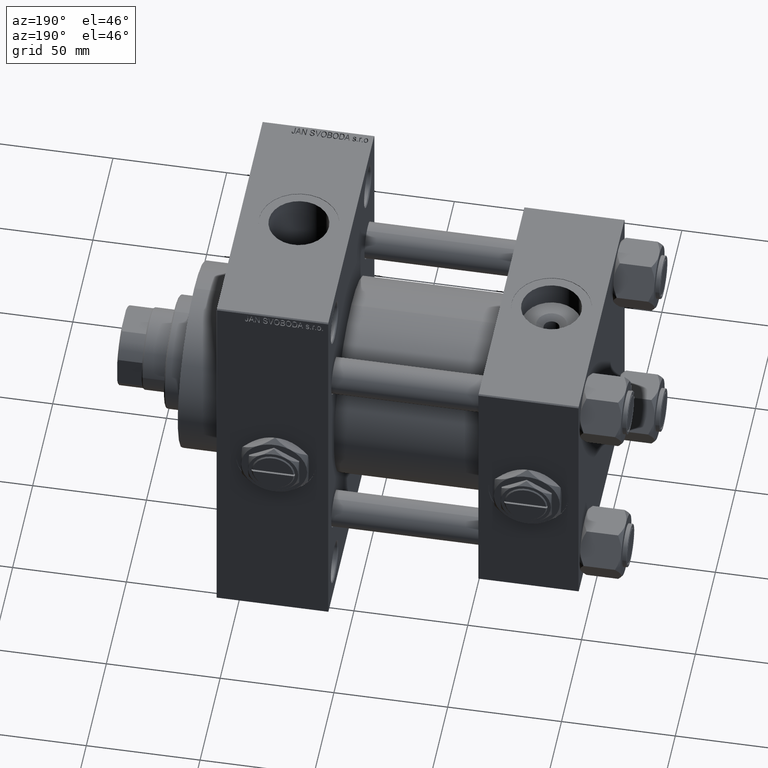
[diagram: clean part render]
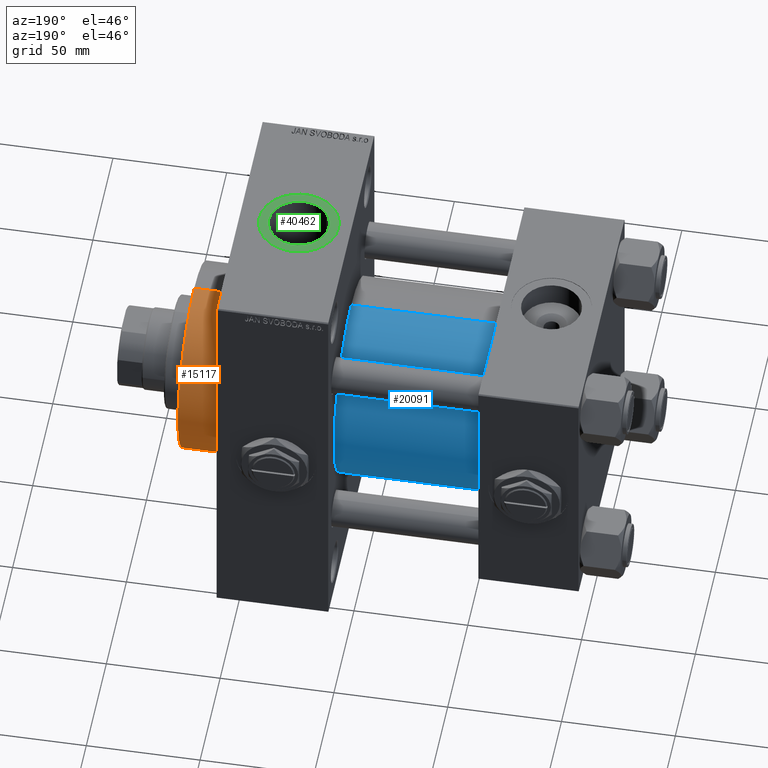
[diagram: same view with three faces highlighted in distinct colors, each labeled with its STEP entity id]
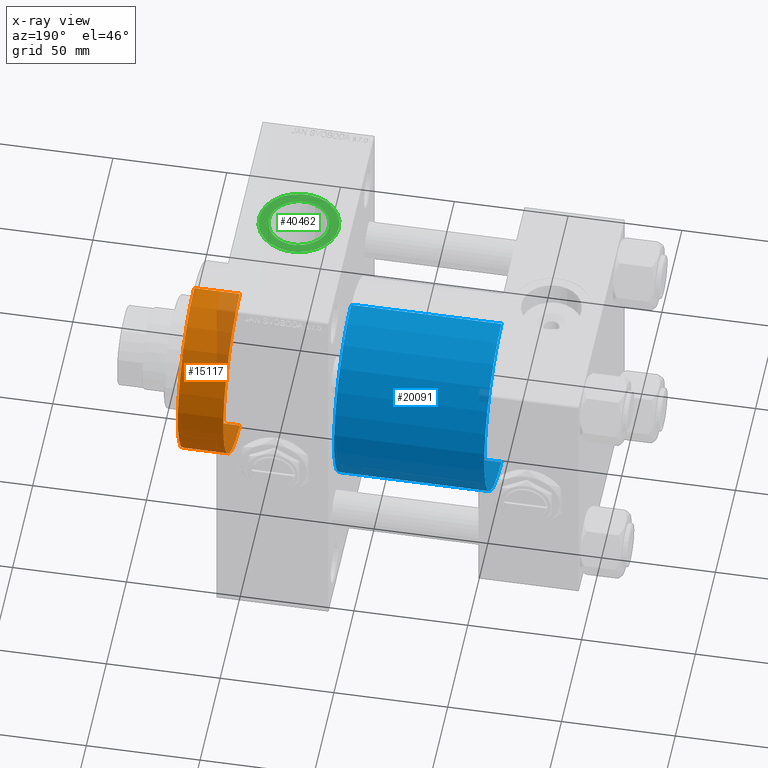
[diagram: x-ray of the same camera — body ghosted, the three highlighted faces saturated]
A machine part, auxiliary view with three faces highlighted in distinct colors.
The next image is the same camera in x-ray (body ghosted, the three faces saturated) — at least one of them is partly hidden behind the body in this view.
Their STEP definitions:

[orange] entity #15117 — the highlighted cylindrical surface (partial cylindrical patch) has radius 41 mm, axis along (-1, -0, -0).
#35 = CARTESIAN_POINT ( 'NONE',  ( 179.0000000000000000, 0.000000000000000000, 41.00000000000000000 ) ) ;
#1355 = DIRECTION ( 'NONE',  ( -1.000000000000000000, -0.000000000000000000, -0.000000000000000000 ) ) ;
#3422 = DIRECTION ( 'NONE',  ( -1.000000000000000000, -0.000000000000000000, -0.000000000000000000 ) ) ;
#4860 = DIRECTION ( 'NONE',  ( 1.000000000000000000, 0.000000000000000000, 0.000000000000000000 ) ) ;
#5540 = CYLINDRICAL_SURFACE ( 'NONE', #43099, 41.00000000000000000 ) ;
#6278 = VERTEX_POINT ( 'NONE', #36998 ) ;
#6440 = EDGE_CURVE ( 'NONE', #48940, #30090, #28548, .T. ) ;
#8254 = CIRCLE ( 'NONE', #49274, 41.00000000000000000 ) ;
#8316 = EDGE_CURVE ( 'NONE', #13550, #48940, #8254, .T. ) ;
#8837 = ORIENTED_EDGE ( 'NONE', *, *, #8316, .F. ) ;
#9802 = FACE_OUTER_BOUND ( 'NONE', #15694, .T. ) ;
#11208 = ORIENTED_EDGE ( 'NONE', *, *, #12986, .T. ) ;
#11659 = AXIS2_PLACEMENT_3D ( 'NONE', #39387, #4860, #47166 ) ;
#12085 = ORIENTED_EDGE ( 'NONE', *, *, #26841, .T. ) ;
#12986 = EDGE_CURVE ( 'NONE', #6278, #30090, #45455, .T. ) ;
#13550 = VERTEX_POINT ( 'NONE', #47481 ) ;
#15117 = ADVANCED_FACE ( 'NONE', ( #9802 ), #5540, .T. ) ;
#15694 = EDGE_LOOP ( 'NONE', ( #8837, #12085, #11208, #24688 ) ) ;
#18022 = CARTESIAN_POINT ( 'NONE',  ( 179.0000000000000000, 0.000000000000000000, 0.000000000000000000 ) ) ;
#18655 = VECTOR ( 'NONE', #1355, 1000.000000000000000 ) ;
#18775 = CARTESIAN_POINT ( 'NONE',  ( 179.0000000000000000, 5.021051876504148963E-15, -41.00000000000000000 ) ) ;
#24688 = ORIENTED_EDGE ( 'NONE', *, *, #6440, .F. ) ;
#25186 = DIRECTION ( 'NONE',  ( 0.000000000000000000, 0.000000000000000000, 1.000000000000000000 ) ) ;
#25336 = DIRECTION ( 'NONE',  ( 0.000000000000000000, 0.000000000000000000, -1.000000000000000000 ) ) ;
#26841 = EDGE_CURVE ( 'NONE', #13550, #6278, #38186, .T. ) ;
#28548 = LINE ( 'NONE', #35610, #18655 ) ;
#30090 = VERTEX_POINT ( 'NONE', #43027 ) ;
#32505 = CARTESIAN_POINT ( 'NONE',  ( 179.0000000000000000, 0.000000000000000000, 0.000000000000000000 ) ) ;
#35610 = CARTESIAN_POINT ( 'NONE',  ( 179.0000000000000000, 0.000000000000000000, 41.00000000000000000 ) ) ;
#36922 = DIRECTION ( 'NONE',  ( 1.000000000000000000, 0.000000000000000000, 0.000000000000000000 ) ) ;
#36998 = CARTESIAN_POINT ( 'NONE',  ( 159.0000000000000000, 5.021051876504148963E-15, -41.00000000000000000 ) ) ;
#38186 = LINE ( 'NONE', #18775, #41807 ) ;
#39387 = CARTESIAN_POINT ( 'NONE',  ( 159.0000000000000000, 0.000000000000000000, 0.000000000000000000 ) ) ;
#41807 = VECTOR ( 'NONE', #3422, 1000.000000000000000 ) ;
#43027 = CARTESIAN_POINT ( 'NONE',  ( 159.0000000000000000, 0.000000000000000000, 41.00000000000000000 ) ) ;
#43099 = AXIS2_PLACEMENT_3D ( 'NONE', #32505, #47836, #25186 ) ;
#45455 = CIRCLE ( 'NONE', #11659, 41.00000000000000000 ) ;
#47166 = DIRECTION ( 'NONE',  ( 0.000000000000000000, 0.000000000000000000, -1.000000000000000000 ) ) ;
#47481 = CARTESIAN_POINT ( 'NONE',  ( 179.0000000000000000, 5.021051876504148963E-15, -41.00000000000000000 ) ) ;
#47836 = DIRECTION ( 'NONE',  ( -1.000000000000000000, -0.000000000000000000, -0.000000000000000000 ) ) ;
#48940 = VERTEX_POINT ( 'NONE', #35 ) ;
#49274 = AXIS2_PLACEMENT_3D ( 'NONE', #18022, #36922, #25336 ) ;

[blue] entity #20091 — the highlighted cylindrical surface (partial cylindrical patch) has radius 43 mm, axis along (-1, -0, -0).
#2645 = ORIENTED_EDGE ( 'NONE', *, *, #47828, .T. ) ;
#2859 = CARTESIAN_POINT ( 'NONE',  ( 110.0000000000000000, 2.663896022368408223E-15, -43.00000000000000000 ) ) ;
#4958 = CARTESIAN_POINT ( 'NONE',  ( 44.00000000000000000, -2.602085213965210642E-15, 43.00000000000000000 ) ) ;
#5661 = ORIENTED_EDGE ( 'NONE', *, *, #34093, .T. ) ;
#5762 = DIRECTION ( 'NONE',  ( -1.000000000000000000, -0.000000000000000000, -0.000000000000000000 ) ) ;
#8139 = CIRCLE ( 'NONE', #21822, 43.00000000000000000 ) ;
#9510 = CIRCLE ( 'NONE', #32051, 43.00000000000000000 ) ;
#10027 = DIRECTION ( 'NONE',  ( 0.000000000000000000, 0.000000000000000000, 1.000000000000000000 ) ) ;
#10328 = CARTESIAN_POINT ( 'NONE',  ( 110.0000000000000000, -2.602085213965210642E-15, 43.00000000000000000 ) ) ;
#10573 = DIRECTION ( 'NONE',  ( -1.000000000000000000, -0.000000000000000000, -0.000000000000000000 ) ) ;
#11311 = CARTESIAN_POINT ( 'NONE',  ( 110.0000000000000000, -2.602085213965210642E-15, 43.00000000000000000 ) ) ;
#12872 = DIRECTION ( 'NONE',  ( 0.000000000000000000, 0.000000000000000000, 1.000000000000000000 ) ) ;
#13796 = CARTESIAN_POINT ( 'NONE',  ( 110.0000000000000000, -2.602085213965210642E-15, 0.000000000000000000 ) ) ;
#14790 = CARTESIAN_POINT ( 'NONE',  ( 110.0000000000000000, 2.663896022368408223E-15, -43.00000000000000000 ) ) ;
#17088 = DIRECTION ( 'NONE',  ( 1.000000000000000000, 0.000000000000000000, 0.000000000000000000 ) ) ;
#18174 = EDGE_CURVE ( 'NONE', #32203, #47190, #44842, .T. ) ;
#20091 = ADVANCED_FACE ( 'NONE', ( #36015 ), #36258, .T. ) ;
#20253 = VERTEX_POINT ( 'NONE', #14790 ) ;
#20454 = CARTESIAN_POINT ( 'NONE',  ( 44.00000000000000000, -2.602085213965210642E-15, 0.000000000000000000 ) ) ;
#21822 = AXIS2_PLACEMENT_3D ( 'NONE', #20454, #43372, #12872 ) ;
#22719 = EDGE_LOOP ( 'NONE', ( #38925, #5661, #2645, #26823 ) ) ;
#25404 = DIRECTION ( 'NONE',  ( 0.000000000000000000, 0.000000000000000000, -1.000000000000000000 ) ) ;
#26823 = ORIENTED_EDGE ( 'NONE', *, *, #18174, .F. ) ;
#32051 = AXIS2_PLACEMENT_3D ( 'NONE', #48802, #17088, #25404 ) ;
#32203 = VERTEX_POINT ( 'NONE', #11311 ) ;
#32605 = LINE ( 'NONE', #2859, #45531 ) ;
#34093 = EDGE_CURVE ( 'NONE', #20253, #46894, #32605, .T. ) ;
#36015 = FACE_OUTER_BOUND ( 'NONE', #22719, .T. ) ;
#36258 = CYLINDRICAL_SURFACE ( 'NONE', #37542, 43.00000000000000000 ) ;
#37542 = AXIS2_PLACEMENT_3D ( 'NONE', #13796, #5762, #10027 ) ;
#38263 = VECTOR ( 'NONE', #10573, 1000.000000000000000 ) ;
#38607 = CARTESIAN_POINT ( 'NONE',  ( 44.00000000000000000, 2.663896022368408223E-15, -43.00000000000000000 ) ) ;
#38925 = ORIENTED_EDGE ( 'NONE', *, *, #42455, .F. ) ;
#40896 = DIRECTION ( 'NONE',  ( -1.000000000000000000, -0.000000000000000000, -0.000000000000000000 ) ) ;
#42455 = EDGE_CURVE ( 'NONE', #20253, #32203, #9510, .T. ) ;
#43372 = DIRECTION ( 'NONE',  ( 1.000000000000000000, -0.000000000000000000, 0.000000000000000000 ) ) ;
#44842 = LINE ( 'NONE', #10328, #38263 ) ;
#45531 = VECTOR ( 'NONE', #40896, 1000.000000000000000 ) ;
#46894 = VERTEX_POINT ( 'NONE', #38607 ) ;
#47190 = VERTEX_POINT ( 'NONE', #4958 ) ;
#47828 = EDGE_CURVE ( 'NONE', #46894, #47190, #8139, .T. ) ;
#48802 = CARTESIAN_POINT ( 'NONE',  ( 110.0000000000000000, -2.602085213965210642E-15, 0.000000000000000000 ) ) ;

[green] entity #40462 — the highlighted planar face has unit normal (0, 0, 1).
#1382 = AXIS2_PLACEMENT_3D ( 'NONE', #18717, #11144, #7116 ) ;
#2018 = PLANE ( 'NONE',  #26355 ) ;
#5925 = EDGE_CURVE ( 'NONE', #30510, #19318, #48425, .T. ) ;
#6885 = EDGE_LOOP ( 'NONE', ( #25707, #35286 ) ) ;
#7089 = CARTESIAN_POINT ( 'NONE',  ( 146.2200000000000273, -9.241894346338509984E-15, 89.79999999999998295 ) ) ;
#7116 = DIRECTION ( 'NONE',  ( 1.000000000000000000, 0.000000000000000000, 0.000000000000000000 ) ) ;
#7420 = EDGE_CURVE ( 'NONE', #19318, #30510, #41240, .T. ) ;
#10235 = CIRCLE ( 'NONE', #28745, 17.50000000000001421 ) ;
#11144 = DIRECTION ( 'NONE',  ( 0.000000000000000000, 0.000000000000000000, 1.000000000000000000 ) ) ;
#13086 = CARTESIAN_POINT ( 'NONE',  ( 133.0000000000000000, -1.086087741481131350E-14, 89.79999999999998295 ) ) ;
#13902 = DIRECTION ( 'NONE',  ( 1.000000000000000000, 0.000000000000000000, 0.000000000000000000 ) ) ;
#14616 = AXIS2_PLACEMENT_3D ( 'NONE', #27275, #24239, #27761 ) ;
#14990 = CARTESIAN_POINT ( 'NONE',  ( 133.0000000000000000, -1.086087741481131350E-14, 89.79999999999998295 ) ) ;
#16516 = CARTESIAN_POINT ( 'NONE',  ( 150.5000000000000284, -1.086087741481131350E-14, 89.79999999999998295 ) ) ;
#16634 = CIRCLE ( 'NONE', #1382, 17.50000000000001421 ) ;
#17097 = CARTESIAN_POINT ( 'NONE',  ( 115.4999999999999858, -8.717745516303440521E-15, 89.79999999999998295 ) ) ;
#18717 = CARTESIAN_POINT ( 'NONE',  ( 133.0000000000000000, -1.086087741481131350E-14, 89.79999999999998295 ) ) ;
#19318 = VERTEX_POINT ( 'NONE', #32299 ) ;
#19534 = AXIS2_PLACEMENT_3D ( 'NONE', #26257, #48915, #13902 ) ;
#20180 = VERTEX_POINT ( 'NONE', #17097 ) ;
#20663 = FACE_OUTER_BOUND ( 'NONE', #6885, .T. ) ;
#21152 = DIRECTION ( 'NONE',  ( 1.000000000000000000, 0.000000000000000000, -0.000000000000000000 ) ) ;
#21388 = EDGE_CURVE ( 'NONE', #20180, #23095, #16634, .T. ) ;
#23095 = VERTEX_POINT ( 'NONE', #16516 ) ;
#24239 = DIRECTION ( 'NONE',  ( -0.000000000000000000, -0.000000000000000000, -1.000000000000000000 ) ) ;
#25707 = ORIENTED_EDGE ( 'NONE', *, *, #36327, .T. ) ;
#26257 = CARTESIAN_POINT ( 'NONE',  ( 133.0000000000000000, -1.086087741481131350E-14, 89.79999999999998295 ) ) ;
#26355 = AXIS2_PLACEMENT_3D ( 'NONE', #13086, #44559, #21152 ) ;
#27275 = CARTESIAN_POINT ( 'NONE',  ( 133.0000000000000000, -1.086087741481131350E-14, 89.79999999999998295 ) ) ;
#27761 = DIRECTION ( 'NONE',  ( 1.000000000000000000, 0.000000000000000000, 0.000000000000000000 ) ) ;
#28483 = FACE_BOUND ( 'NONE', #43968, .T. ) ;
#28745 = AXIS2_PLACEMENT_3D ( 'NONE', #14990, #30379, #45718 ) ;
#30379 = DIRECTION ( 'NONE',  ( 0.000000000000000000, 0.000000000000000000, 1.000000000000000000 ) ) ;
#30510 = VERTEX_POINT ( 'NONE', #7089 ) ;
#32299 = CARTESIAN_POINT ( 'NONE',  ( 119.7800000000000011, -1.086087741481131350E-14, 89.79999999999998295 ) ) ;
#35286 = ORIENTED_EDGE ( 'NONE', *, *, #21388, .T. ) ;
#36327 = EDGE_CURVE ( 'NONE', #23095, #20180, #10235, .T. ) ;
#40462 = ADVANCED_FACE ( 'NONE', ( #28483, #20663 ), #2018, .T. ) ;
#41240 = CIRCLE ( 'NONE', #19534, 13.22000000000000952 ) ;
#42545 = ORIENTED_EDGE ( 'NONE', *, *, #7420, .T. ) ;
#43968 = EDGE_LOOP ( 'NONE', ( #42545, #49732 ) ) ;
#44559 = DIRECTION ( 'NONE',  ( 0.000000000000000000, 0.000000000000000000, 1.000000000000000000 ) ) ;
#45718 = DIRECTION ( 'NONE',  ( 1.000000000000000000, 0.000000000000000000, 0.000000000000000000 ) ) ;
#48425 = CIRCLE ( 'NONE', #14616, 13.22000000000000952 ) ;
#48915 = DIRECTION ( 'NONE',  ( -0.000000000000000000, -0.000000000000000000, -1.000000000000000000 ) ) ;
#49732 = ORIENTED_EDGE ( 'NONE', *, *, #5925, .T. ) ;